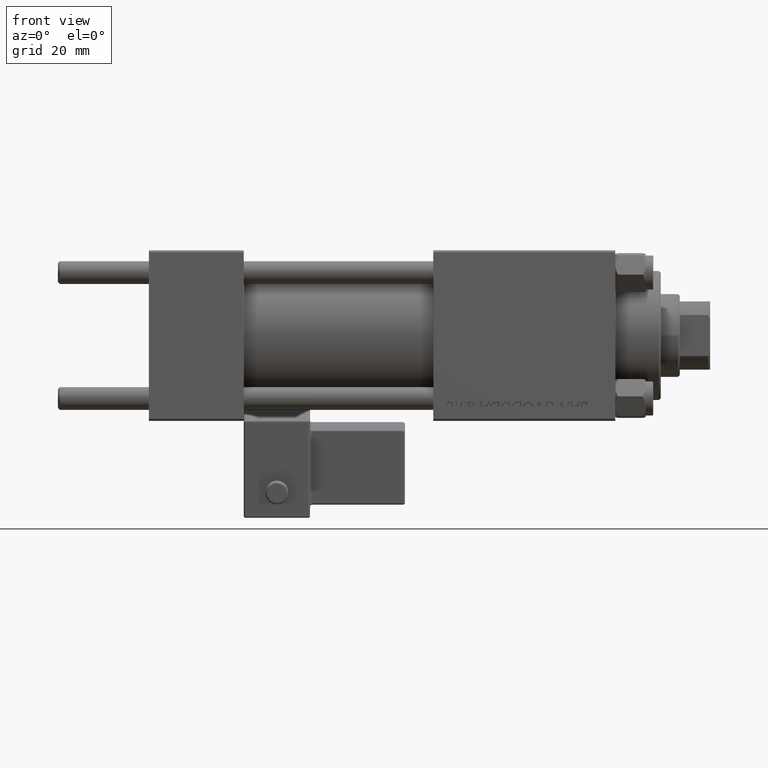
[diagram: clean part render]
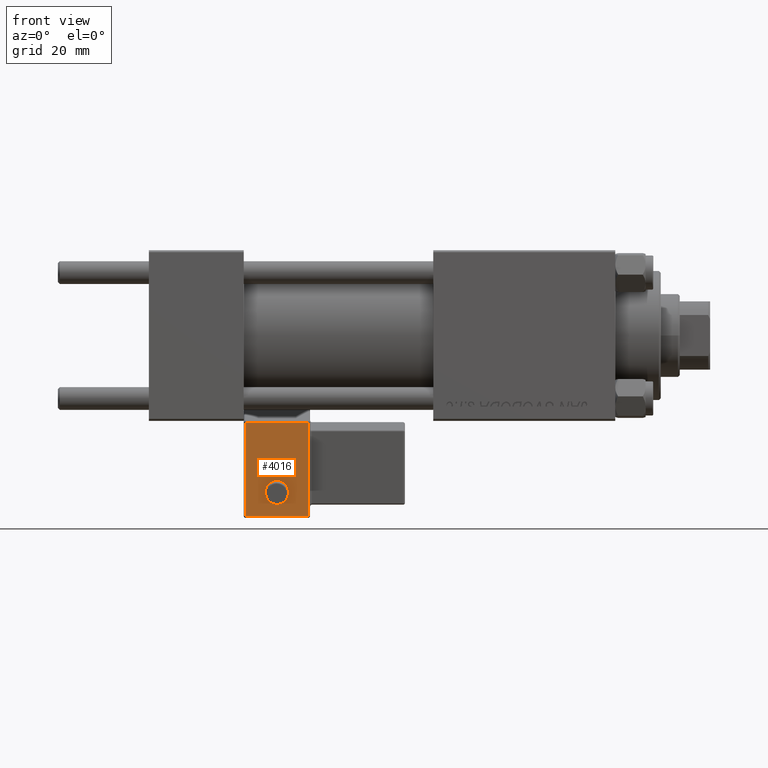
[diagram: same view with one face highlighted and labeled with its STEP entity id]
A machine part, front view. The second image highlights one B-rep face of the part: STEP entity #4016.
In plain terms, the highlighted planar face has unit normal (0, 0.9902, 0.1399).
Its self-contained STEP definition (entity closure, byte-faithful):
#452 = CARTESIAN_POINT ( 'NONE',  ( -4.336808689942017736E-16, -33.75000000000000000, 6.000000000000001776 ) ) ;
#1783 = DIRECTION ( 'NONE',  ( -1.334402673828313339E-16, 0.000000000000000000, 1.000000000000000000 ) ) ;
#2239 = CIRCLE ( 'NONE', #15732, 2.999999999999999112 ) ;
#3346 = CARTESIAN_POINT ( 'NONE',  ( 0.000000000000000000, -33.75000000000000000, 0.000000000000000000 ) ) ;
#4016 = ADVANCED_FACE ( 'NONE', ( #39006, #52242 ), #43775, .F. ) ;
#7259 = LINE ( 'NONE', #16471, #26657 ) ;
#7353 = VERTEX_POINT ( 'NONE', #22721 ) ;
#7355 = VECTOR ( 'NONE', #1783, 1000.000000000000000 ) ;
#8089 = VECTOR ( 'NONE', #37818, 1000.000000000000000 ) ;
#8970 = EDGE_CURVE ( 'NONE', #49148, #45393, #45014, .T. ) ;
#9978 = CARTESIAN_POINT ( 'NONE',  ( 8.250000000000003553, -33.75000000000000000, 1.100882205908358986E-15 ) ) ;
#9985 = CARTESIAN_POINT ( 'NONE',  ( -6.628682924999581145E-17, -33.75000000000000000, 3.000000000000001776 ) ) ;
#11016 = DIRECTION ( 'NONE',  ( 0.000000000000000000, 1.000000000000000000, 0.000000000000000000 ) ) ;
#13063 = EDGE_CURVE ( 'NONE', #20931, #49148, #7259, .T. ) ;
#15041 = EDGE_CURVE ( 'NONE', #38556, #20931, #43709, .T. ) ;
#15732 = AXIS2_PLACEMENT_3D ( 'NONE', #45553, #29149, #45292 ) ;
#15813 = CARTESIAN_POINT ( 'NONE',  ( -8.250000000000000000, -33.75000000000000000, 24.50000000000000355 ) ) ;
#15987 = VERTEX_POINT ( 'NONE', #9985 ) ;
#16439 = DIRECTION ( 'NONE',  ( 1.000000000000000000, 0.000000000000000000, 0.000000000000000000 ) ) ;
#16471 = CARTESIAN_POINT ( 'NONE',  ( 4.857225732735059864E-15, -33.75000000000000000, 24.50000000000000000 ) ) ;
#16704 = LINE ( 'NONE', #49746, #39457 ) ;
#19875 = ORIENTED_EDGE ( 'NONE', *, *, #44051, .T. ) ;
#20931 = VERTEX_POINT ( 'NONE', #21672 ) ;
#21672 = CARTESIAN_POINT ( 'NONE',  ( 8.250000000000000000, -33.75000000000000000, 24.50000000000000000 ) ) ;
#22721 = CARTESIAN_POINT ( 'NONE',  ( -4.336808689942017736E-16, -33.75000000000000000, 9.000000000000001776 ) ) ;
#23415 = AXIS2_PLACEMENT_3D ( 'NONE', #452, #48839, #49094 ) ;
#24270 = CIRCLE ( 'NONE', #23415, 2.999999999999999112 ) ;
#26657 = VECTOR ( 'NONE', #48751, 1000.000000000000000 ) ;
#27542 = EDGE_LOOP ( 'NONE', ( #51734, #35846 ) ) ;
#29013 = AXIS2_PLACEMENT_3D ( 'NONE', #3346, #11016, #35304 ) ;
#29066 = ORIENTED_EDGE ( 'NONE', *, *, #8970, .T. ) ;
#29149 = DIRECTION ( 'NONE',  ( -0.000000000000000000, -1.000000000000000000, -0.000000000000000000 ) ) ;
#31234 = EDGE_LOOP ( 'NONE', ( #44289, #29066, #19875, #33022 ) ) ;
#33022 = ORIENTED_EDGE ( 'NONE', *, *, #15041, .T. ) ;
#33343 = CARTESIAN_POINT ( 'NONE',  ( -8.250000000000003553, -33.75000000000000000, 1.100882205908358788E-15 ) ) ;
#35304 = DIRECTION ( 'NONE',  ( 0.000000000000000000, -0.000000000000000000, 1.000000000000000000 ) ) ;
#35846 = ORIENTED_EDGE ( 'NONE', *, *, #41369, .F. ) ;
#37818 = DIRECTION ( 'NONE',  ( -1.334402673828313093E-16, 0.000000000000000000, -1.000000000000000000 ) ) ;
#38358 = EDGE_CURVE ( 'NONE', #7353, #15987, #2239, .T. ) ;
#38556 = VERTEX_POINT ( 'NONE', #45806 ) ;
#39006 = FACE_OUTER_BOUND ( 'NONE', #31234, .T. ) ;
#39457 = VECTOR ( 'NONE', #16439, 1000.000000000000000 ) ;
#41369 = EDGE_CURVE ( 'NONE', #15987, #7353, #24270, .T. ) ;
#43709 = LINE ( 'NONE', #9978, #7355 ) ;
#43775 = PLANE ( 'NONE',  #29013 ) ;
#44051 = EDGE_CURVE ( 'NONE', #45393, #38556, #16704, .T. ) ;
#44289 = ORIENTED_EDGE ( 'NONE', *, *, #13063, .T. ) ;
#45014 = LINE ( 'NONE', #33343, #8089 ) ;
#45292 = DIRECTION ( 'NONE',  ( 0.000000000000000000, 0.000000000000000000, 1.000000000000000000 ) ) ;
#45393 = VERTEX_POINT ( 'NONE', #46731 ) ;
#45553 = CARTESIAN_POINT ( 'NONE',  ( -4.336808689942017736E-16, -33.75000000000000000, 6.000000000000001776 ) ) ;
#45806 = CARTESIAN_POINT ( 'NONE',  ( 8.250000000000003553, -33.75000000000000000, -0.5000000000000002220 ) ) ;
#46731 = CARTESIAN_POINT ( 'NONE',  ( -8.250000000000003553, -33.75000000000000000, -0.5000000000000002220 ) ) ;
#48751 = DIRECTION ( 'NONE',  ( -1.000000000000000000, 0.000000000000000000, 1.982541115402065110E-16 ) ) ;
#48839 = DIRECTION ( 'NONE',  ( -0.000000000000000000, -1.000000000000000000, -0.000000000000000000 ) ) ;
#49094 = DIRECTION ( 'NONE',  ( 0.000000000000000000, 0.000000000000000000, 1.000000000000000000 ) ) ;
#49148 = VERTEX_POINT ( 'NONE', #15813 ) ;
#49746 = CARTESIAN_POINT ( 'NONE',  ( 0.000000000000000000, -33.75000000000000000, -0.5000000000000002220 ) ) ;
#51734 = ORIENTED_EDGE ( 'NONE', *, *, #38358, .F. ) ;
#52242 = FACE_BOUND ( 'NONE', #27542, .T. ) ;